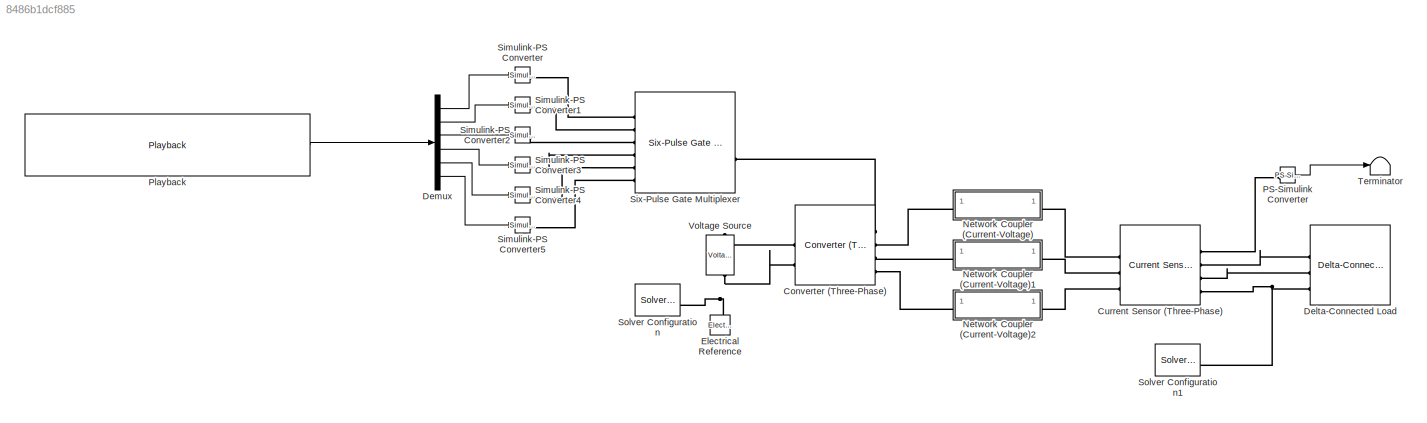
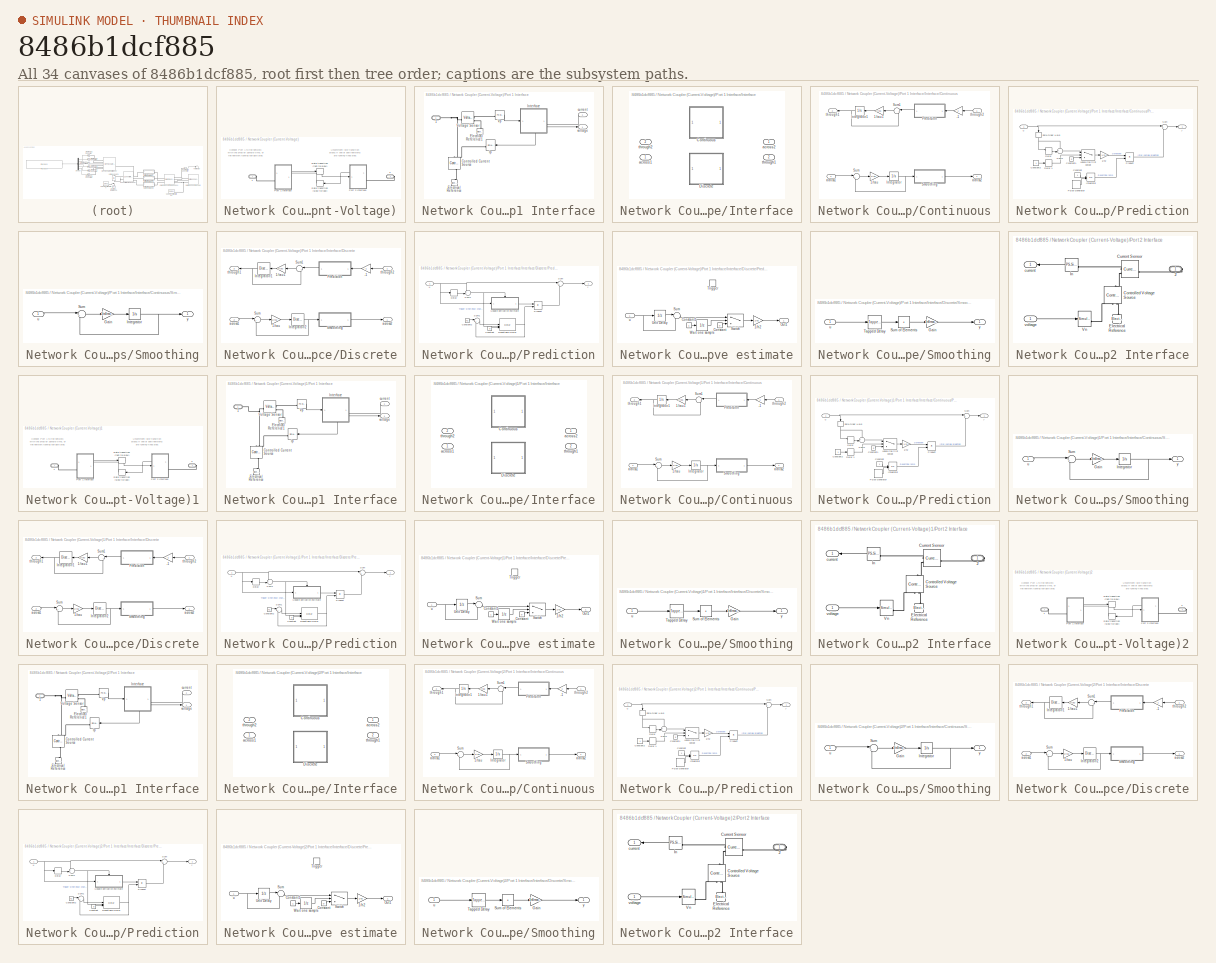
[diagram: thumbnail index - all 34 canvases of the model, root first then tree order]
MODEL slx_8486b1dcf885
KIND model
CONFIG AbsTol = auto
CONFIG EnableMultiTasking = off
CONFIG FixedStep = auto
CONFIG MaxStep = auto
CONFIG MinStep = auto
CONFIG RelTol = 1e-3
CONFIG SampleTimeConstraint = Unconstrained
CONFIG SolverName = FixedStepAuto
CONFIG StartTime = 0.0
CONFIG StopTime = 20
BLOCK [Reference] Converter (Three-Phase)  REF=ee_lib/Semiconductors &
Converters/Converters/Converter
(Three-Phase)
  SourceBlock = ee_lib/Semiconductors &\nConverters/Converters/Converter\n(Three-Phase)
  SourceType = Converter\n(Three-Phase)
BLOCK [Reference] Current Sensor (Three-Phase)  REF=ee_lib/Sensors &
Transducers/Current Sensor
(Three-Phase)
  SourceBlock = ee_lib/Sensors &\nTransducers/Current Sensor\n(Three-Phase)
  SourceType = Current Sensor\n(Three-Phase)
BLOCK [Reference] Delta-Connected Load  REF=ee_lib/Passive/RLC Assemblies/Delta-Connected Load
  SourceBlock = ee_lib/Passive/RLC Assemblies/Delta-Connected Load
  SourceType = Delta-Connected Load
BLOCK [Demux] Demux
  Outputs = 6
BLOCK [Reference] Electrical Reference  REF=fl_lib/Electrical/Electrical Elements/Electrical Reference
  NameLocation = right
  SourceBlock = fl_lib/Electrical/Electrical Elements/Electrical Reference
  SourceType = Electrical Reference
BLOCK [SubSystem] Network Coupler (Current-Voltage)
  OpenFcn = open_system(gcbh,'force')
BLOCK [PMIOPort] Network Coupler (Current-Voltage)/1
  Side = Left
BLOCK [PMIOPort] Network Coupler (Current-Voltage)/2
  Port = 2
  Side = Right
BLOCK [SubSystem] Network Coupler (Current-Voltage)/Port 1 Interface
  PortSchema = {"entries":[{"content":{"sides":[{"content":{"connectorIds":["LConn1"]},"type":"ConnectorPlacement.EquallySpacedRectSide","uuid":"a6d4a9fd-b5aa-40dc-ab7e-2b646b9b57bc"},{"content":{"connectorIds":["Out1","In1"],"side":"RIGHT"},"type":"ConnectorPlacement.EquallySpacedRectSide","uuid":"31bb6273-5b9b-48d0-a1a2-6fbacb979b97"},{"content":{"connectorIds":[],"side":"TOP"},"type":"ConnectorPlacement.Equal...<+249ch>  <repeated x3 — deduplicated; at blocks: Port 1 Interface>
BLOCK [PMIOPort] Network Coupler (Current-Voltage)/Port 1 Interface/1
  Side = Left
BLOCK [Reference] Network Coupler (Current-Voltage)/Port 1 Interface/Controlled Current Source  REF=fl_lib/Electrical/Electrical Sources/Controlled Current
Source
  NameLocation = left
  SourceBlock = fl_lib/Electrical/Electrical Sources/Controlled Current\nSource
  SourceType = Controlled Current\nSource
BLOCK [Reference] Network Coupler (Current-Voltage)/Port 1 Interface/Electrical Reference  REF=fl_lib/Electrical/Electrical Elements/Electrical Reference
  NameLocation = right
  SourceBlock = fl_lib/Electrical/Electrical Elements/Electrical Reference
  SourceType = Electrical Reference
BLOCK [Reference] Network Coupler (Current-Voltage)/Port 1 Interface/Electrical Reference1  REF=fl_lib/Electrical/Electrical Elements/Electrical Reference
  NameLocation = right
  SourceBlock = fl_lib/Electrical/Electrical Elements/Electrical Reference
  SourceType = Electrical Reference
BLOCK [SubSystem] Network Coupler (Current-Voltage)/Port 1 Interface/Interface
  LabelModeActiveChoice = Continuous
  PortSchema = {"entries":[{"content":{"sides":[{"content":{"connectorIds":["In1","Out2"]},"type":"ConnectorPlacement.EquallySpacedRectSide","uuid":"aa56821c-7799-44e3-b228-553c5b43a68d"},{"content":{"connectorIds":["In2","Out1"],"side":"RIGHT"},"type":"ConnectorPlacement.EquallySpacedRectSide","uuid":"8658dee5-55e2-4f33-bdec-e6600ce27fc1"},{"content":{"connectorIds":[],"side":"TOP"},"type":"ConnectorPlacement.E...<+253ch>  <repeated x3 — deduplicated; at blocks: Interface>
  Variant = on
  VariantControl = Variant1
  VariantControlMode = label
BLOCK [SubSystem] Network Coupler (Current-Voltage)/Port 1 Interface/Interface/Continuous
  VariantControl = Continuous
BLOCK [Gain] Network Coupler (Current-Voltage)/Port 1 Interface/Interface/Continuous/-1
  Gain = -1
  OutDataTypeStr = Inherit: Same as input
  ParamDataTypeStr = Inherit: Same as input
  SaturateOnIntegerOverflow = on
BLOCK [Gain] Network Coupler (Current-Voltage)/Port 1 Interface/Interface/Continuous/1//tau
  Gain = 1/tau
  OutDataTypeStr = Inherit: Same as input
  ParamDataTypeStr = Inherit: Same as input
  SaturateOnIntegerOverflow = on
BLOCK [Gain] Network Coupler (Current-Voltage)/Port 1 Interface/Interface/Continuous/1//tau1
  Gain = 1/tau
  OutDataTypeStr = Inherit: Same as input
  ParamDataTypeStr = Inherit: Same as input
  SaturateOnIntegerOverflow = on
BLOCK [Integrator] Network Coupler (Current-Voltage)/Port 1 Interface/Interface/Continuous/Integrator
  InitialCondition = v0
BLOCK [Integrator] Network Coupler (Current-Voltage)/Port 1 Interface/Interface/Continuous/Integrator1
  InitialCondition = i0
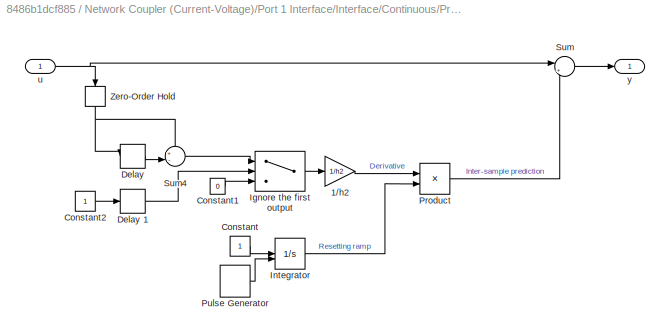
BLOCK [SubSystem] Network Coupler (Current-Voltage)/Port 1 Interface/Interface/Continuous/Prediction
  Commented = through
BLOCK [Gain] Network Coupler (Current-Voltage)/Port 1 Interface/Interface/Continuous/Prediction/1//h2
  Gain = 1/h2
BLOCK [Constant] Network Coupler (Current-Voltage)/Port 1 Interface/Interface/Continuous/Prediction/Constant
  SampleTime = h2
BLOCK [Constant] Network Coupler (Current-Voltage)/Port 1 Interface/Interface/Continuous/Prediction/Constant1
  SampleTime = h2
  Value = 0
BLOCK [Constant] Network Coupler (Current-Voltage)/Port 1 Interface/Interface/Continuous/Prediction/Constant2
  SampleTime = h2
BLOCK [Delay] Network Coupler (Current-Voltage)/Port 1 Interface/Interface/Continuous/Prediction/Delay 
  DelayLength = 1
  InputPortMap = u0
  SampleTime = h2
BLOCK [Delay] Network Coupler (Current-Voltage)/Port 1 Interface/Interface/Continuous/Prediction/Delay 1
  DelayLength = 1
  InputPortMap = u0
  SampleTime = h2
BLOCK [Switch] Network Coupler (Current-Voltage)/Port 1 Interface/Interface/Continuous/Prediction/Ignore the first output
  Criteria = u2 > Threshold
  InputSameDT = off
  SaturateOnIntegerOverflow = off
BLOCK [Integrator] Network Coupler (Current-Voltage)/Port 1 Interface/Interface/Continuous/Prediction/Integrator
  ExternalReset = either
  LimitOutput = on
  LowerSaturationLimit = 0
  UpperSaturationLimit = 1
BLOCK [Product] Network Coupler (Current-Voltage)/Port 1 Interface/Interface/Continuous/Prediction/Product
BLOCK [DiscretePulseGenerator] Network Coupler (Current-Voltage)/Port 1 Interface/Interface/Continuous/Prediction/Pulse Generator
  SampleTime = h2
BLOCK [Sum] Network Coupler (Current-Voltage)/Port 1 Interface/Interface/Continuous/Prediction/Sum
  Inputs = |++
BLOCK [Sum] Network Coupler (Current-Voltage)/Port 1 Interface/Interface/Continuous/Prediction/Sum4
  Inputs = +-|
BLOCK [ZeroOrderHold] Network Coupler (Current-Voltage)/Port 1 Interface/Interface/Continuous/Prediction/Zero-Order Hold
  NameLocation = right
  SampleTime = h2
BLOCK [Inport] Network Coupler (Current-Voltage)/Port 1 Interface/Interface/Continuous/Prediction/u
BLOCK [Outport] Network Coupler (Current-Voltage)/Port 1 Interface/Interface/Continuous/Prediction/y
BLOCK [SubSystem] Network Coupler (Current-Voltage)/Port 1 Interface/Interface/Continuous/Smoothing
  Commented = through
BLOCK [Gain] Network Coupler (Current-Voltage)/Port 1 Interface/Interface/Continuous/Smoothing/Gain
  Gain = 1/tsSmoothing
BLOCK [Integrator] Network Coupler (Current-Voltage)/Port 1 Interface/Interface/Continuous/Smoothing/Integrator
  InitialCondition = smoothing0
BLOCK [Sum] Network Coupler (Current-Voltage)/Port 1 Interface/Interface/Continuous/Smoothing/Sum
  Inputs = |+-
BLOCK [Inport] Network Coupler (Current-Voltage)/Port 1 Interface/Interface/Continuous/Smoothing/u
BLOCK [Outport] Network Coupler (Current-Voltage)/Port 1 Interface/Interface/Continuous/Smoothing/y
BLOCK [Sum] Network Coupler (Current-Voltage)/Port 1 Interface/Interface/Continuous/Sum
  InputSameDT = on
  Inputs = |+-
  OutDataTypeStr = Inherit: Same as first input
  SaturateOnIntegerOverflow = on
BLOCK [Sum] Network Coupler (Current-Voltage)/Port 1 Interface/Interface/Continuous/Sum1
  InputSameDT = on
  Inputs = |+-
  NameLocation = top
  OutDataTypeStr = Inherit: Same as first input
  SaturateOnIntegerOverflow = on
BLOCK [Inport] Network Coupler (Current-Voltage)/Port 1 Interface/Interface/Continuous/across1
  Port = 2
BLOCK [Outport] Network Coupler (Current-Voltage)/Port 1 Interface/Interface/Continuous/across2
BLOCK [Outport] Network Coupler (Current-Voltage)/Port 1 Interface/Interface/Continuous/through1
  Port = 2
BLOCK [Inport] Network Coupler (Current-Voltage)/Port 1 Interface/Interface/Continuous/through2
BLOCK [SubSystem] Network Coupler (Current-Voltage)/Port 1 Interface/Interface/Discrete
  VariantControl = Discrete
BLOCK [Gain] Network Coupler (Current-Voltage)/Port 1 Interface/Interface/Discrete/-1
  Gain = -1
  OutDataTypeStr = Inherit: Same as input
  ParamDataTypeStr = Inherit: Same as input
  SaturateOnIntegerOverflow = on
BLOCK [Gain] Network Coupler (Current-Voltage)/Port 1 Interface/Interface/Discrete/1//tau
  Gain = 1/tau
  OutDataTypeStr = Inherit: Same as input
  ParamDataTypeStr = Inherit: Same as input
  SaturateOnIntegerOverflow = on
BLOCK [Gain] Network Coupler (Current-Voltage)/Port 1 Interface/Interface/Discrete/1//tau1
  Gain = 1/tau
  OutDataTypeStr = Inherit: Same as input
  ParamDataTypeStr = Inherit: Same as input
  SaturateOnIntegerOverflow = on
BLOCK [DiscreteIntegrator] Network Coupler (Current-Voltage)/Port 1 Interface/Interface/Discrete/Integrator//1
  ICPrevOutput = DiscIntNeverNeededParam
  ICPrevScaledInput = DiscIntNeverNeededParam
  InitialCondition = i0
  InitialConditionSetting = Auto
  SampleTime = h1
BLOCK [DiscreteIntegrator] Network Coupler (Current-Voltage)/Port 1 Interface/Interface/Discrete/Integrator//2
  ICPrevOutput = DiscIntNeverNeededParam
  ICPrevScaledInput = DiscIntNeverNeededParam
  InitialCondition = v0
  InitialConditionSetting = Auto
  SampleTime = h1
BLOCK [SubSystem] Network Coupler (Current-Voltage)/Port 1 Interface/Interface/Discrete/Prediction
  Commented = through
BLOCK [Constant] Network Coupler (Current-Voltage)/Port 1 Interface/Interface/Discrete/Prediction/Constant
  SampleTime = h1
  Value = 0
BLOCK [Constant] Network Coupler (Current-Voltage)/Port 1 Interface/Interface/Discrete/Prediction/Constant2
  SampleTime = h1
  Value = h1
BLOCK [Delay] Network Coupler (Current-Voltage)/Port 1 Interface/Interface/Discrete/Prediction/Delay 
  DelayLength = 1
  InputPortMap = u0
  SampleTime = h1
BLOCK [Product] Network Coupler (Current-Voltage)/Port 1 Interface/Interface/Discrete/Prediction/Product
BLOCK [Delay] Network Coupler (Current-Voltage)/Port 1 Interface/Interface/Discrete/Prediction/Resettable Delay
  DelayLength = 1
  ExternalReset = Rising
  InitialConditionSource = Input port
  InputPortMap = u0,r5,p4
  SampleTime = h1
BLOCK [Sum] Network Coupler (Current-Voltage)/Port 1 Interface/Interface/Discrete/Prediction/Sum
  Inputs = |++
BLOCK [Sum] Network Coupler (Current-Voltage)/Port 1 Interface/Interface/Discrete/Prediction/Sum1
  Inputs = |++
BLOCK [Sum] Network Coupler (Current-Voltage)/Port 1 Interface/Interface/Discrete/Prediction/Sum4
  Inputs = +-|
BLOCK [SubSystem] Network Coupler (Current-Voltage)/Port 1 Interface/Interface/Discrete/Prediction/Update derivative estimate
  TreatAsAtomicUnit = on
BLOCK [Gain] Network Coupler (Current-Voltage)/Port 1 Interface/Interface/Discrete/Prediction/Update derivative estimate/1//h2
  Gain = 1/h2
BLOCK [Constant] Network Coupler (Current-Voltage)/Port 1 Interface/Interface/Discrete/Prediction/Update derivative estimate/Constant
  SampleTime = -1
  Value = 0
BLOCK [Constant] Network Coupler (Current-Voltage)/Port 1 Interface/Interface/Discrete/Prediction/Update derivative estimate/Constant1
  SampleTime = -1
BLOCK [Outport] Network Coupler (Current-Voltage)/Port 1 Interface/Interface/Discrete/Prediction/Update derivative estimate/Out1
BLOCK [Sum] Network Coupler (Current-Voltage)/Port 1 Interface/Interface/Discrete/Prediction/Update derivative estimate/Sum
  Inputs = |-+
BLOCK [Switch] Network Coupler (Current-Voltage)/Port 1 Interface/Interface/Discrete/Prediction/Update derivative estimate/Switch
  Criteria = u2 > Threshold
  InputSameDT = off
  SaturateOnIntegerOverflow = off
BLOCK [TriggerPort] Network Coupler (Current-Voltage)/Port 1 Interface/Interface/Discrete/Prediction/Update derivative estimate/Trigger
  StatesWhenEnabling = held
  VariantControl = (inherit)
BLOCK [UnitDelay] Network Coupler (Current-Voltage)/Port 1 Interface/Interface/Discrete/Prediction/Update derivative estimate/Unit Delay
  HasFrameUpgradeWarning = on
  SampleTime = -1
BLOCK [UnitDelay] Network Coupler (Current-Voltage)/Port 1 Interface/Interface/Discrete/Prediction/Update derivative estimate/Wait one sample
  HasFrameUpgradeWarning = on
  SampleTime = -1
BLOCK [Inport] Network Coupler (Current-Voltage)/Port 1 Interface/Interface/Discrete/Prediction/Update derivative estimate/u
BLOCK [Inport] Network Coupler (Current-Voltage)/Port 1 Interface/Interface/Discrete/Prediction/u
BLOCK [Outport] Network Coupler (Current-Voltage)/Port 1 Interface/Interface/Discrete/Prediction/y
BLOCK [SubSystem] Network Coupler (Current-Voltage)/Port 1 Interface/Interface/Discrete/Smoothing
  Commented = through
BLOCK [Gain] Network Coupler (Current-Voltage)/Port 1 Interface/Interface/Discrete/Smoothing/Gain
  Gain = 1/nSmooth
BLOCK [Sum] Network Coupler (Current-Voltage)/Port 1 Interface/Interface/Discrete/Smoothing/Sum of Elements
  IconShape = rectangular
  Inputs = +
BLOCK [Reference] Network Coupler (Current-Voltage)/Port 1 Interface/Interface/Discrete/Smoothing/Tapped Delay  REF=simulink/Discrete/Tapped Delay
  SourceBlock = simulink/Discrete/Tapped Delay
  SourceType = Tapped Delay Line
BLOCK [Inport] Network Coupler (Current-Voltage)/Port 1 Interface/Interface/Discrete/Smoothing/u
BLOCK [Outport] Network Coupler (Current-Voltage)/Port 1 Interface/Interface/Discrete/Smoothing/y
BLOCK [Sum] Network Coupler (Current-Voltage)/Port 1 Interface/Interface/Discrete/Sum
  InputSameDT = on
  Inputs = |+-
  OutDataTypeStr = Inherit: Same as first input
  SaturateOnIntegerOverflow = on
BLOCK [Sum] Network Coupler (Current-Voltage)/Port 1 Interface/Interface/Discrete/Sum1
  InputSameDT = on
  Inputs = |+-
  NameLocation = top
  OutDataTypeStr = Inherit: Same as first input
  SaturateOnIntegerOverflow = on
BLOCK [Inport] Network Coupler (Current-Voltage)/Port 1 Interface/Interface/Discrete/across1
  Port = 2
BLOCK [Outport] Network Coupler (Current-Voltage)/Port 1 Interface/Interface/Discrete/across2
BLOCK [Outport] Network Coupler (Current-Voltage)/Port 1 Interface/Interface/Discrete/through1
  Port = 2
BLOCK [Inport] Network Coupler (Current-Voltage)/Port 1 Interface/Interface/Discrete/through2
BLOCK [Inport] Network Coupler (Current-Voltage)/Port 1 Interface/Interface/across1
BLOCK [Outport] Network Coupler (Current-Voltage)/Port 1 Interface/Interface/across2
BLOCK [Outport] Network Coupler (Current-Voltage)/Port 1 Interface/Interface/through1
  Port = 2
BLOCK [Inport] Network Coupler (Current-Voltage)/Port 1 Interface/Interface/through2
  Port = 2
BLOCK [Reference] Network Coupler (Current-Voltage)/Port 1 Interface/Ip  REF=nesl_utility/Simulink-PS
Converter
  SourceBlock = nesl_utility/Simulink-PS\nConverter
  SourceType = Simulink-PS\nConverter
BLOCK [Reference] Network Coupler (Current-Voltage)/Port 1 Interface/Voltage Sensor  REF=fl_lib/Electrical/Electrical Sensors/Voltage Sensor
  SourceBlock = fl_lib/Electrical/Electrical Sensors/Voltage Sensor
  SourceType = Voltage Sensor
BLOCK [Reference] Network Coupler (Current-Voltage)/Port 1 Interface/Vp  REF=nesl_utility/PS-Simulink
Converter
  SourceBlock = nesl_utility/PS-Simulink\nConverter
  SourceType = PS-Simulink\nConverter
BLOCK [Inport] Network Coupler (Current-Voltage)/Port 1 Interface/current
BLOCK [Outport] Network Coupler (Current-Voltage)/Port 1 Interface/voltage
BLOCK [SubSystem] Network Coupler (Current-Voltage)/Port 2 Interface
  PortSchema = {"entries":[{"content":{"sides":[{"content":{"connectorIds":["In1","Out1"]},"type":"ConnectorPlacement.EquallySpacedRectSide","uuid":"5a4c1550-e77d-42df-bf3e-b81963920de7"},{"content":{"connectorIds":["RConn1"],"side":"RIGHT"},"type":"ConnectorPlacement.EquallySpacedRectSide","uuid":"3fd730f7-5937-4563-a365-595aaae9027b"},{"content":{"connectorIds":[],"side":"TOP"},"type":"ConnectorPlacement.Equal...<+249ch>  <repeated x3 — deduplicated; at blocks: Port 2 Interface>
BLOCK [PMIOPort] Network Coupler (Current-Voltage)/Port 2 Interface/2
  Side = Right
BLOCK [Reference] Network Coupler (Current-Voltage)/Port 2 Interface/Controlled Voltage Source  REF=fl_lib/Electrical/Electrical Sources/Controlled Voltage
Source
  NameLocation = right
  SourceBlock = fl_lib/Electrical/Electrical Sources/Controlled Voltage\nSource
  SourceType = Controlled Voltage\nSource
BLOCK [Reference] Network Coupler (Current-Voltage)/Port 2 Interface/Current Sensor  REF=fl_lib/Electrical/Electrical Sensors/Current Sensor
  SourceBlock = fl_lib/Electrical/Electrical Sensors/Current Sensor
  SourceType = Current Sensor
BLOCK [Reference] Network Coupler (Current-Voltage)/Port 2 Interface/Electrical Reference  REF=fl_lib/Electrical/Electrical Elements/Electrical Reference
  NameLocation = left
  SourceBlock = fl_lib/Electrical/Electrical Elements/Electrical Reference
  SourceType = Electrical Reference
BLOCK [Reference] Network Coupler (Current-Voltage)/Port 2 Interface/In  REF=nesl_utility/PS-Simulink
Converter
  NameLocation = top
  SourceBlock = nesl_utility/PS-Simulink\nConverter
  SourceType = PS-Simulink\nConverter
BLOCK [Reference] Network Coupler (Current-Voltage)/Port 2 Interface/Vn  REF=nesl_utility/Simulink-PS
Converter
  NameLocation = top
  SourceBlock = nesl_utility/Simulink-PS\nConverter
  SourceType = Simulink-PS\nConverter
BLOCK [Outport] Network Coupler (Current-Voltage)/Port 2 Interface/current
BLOCK [Inport] Network Coupler (Current-Voltage)/Port 2 Interface/voltage
BLOCK [RateTransition] Network Coupler (Current-Voltage)/Rate transition (fast-to-slow)
  Commented = through
  Integrity = off
  NameLocation = top
BLOCK [RateTransition] Network Coupler (Current-Voltage)/Rate transition (slow-to-fast)
  Commented = through
  Integrity = off
BLOCK [SubSystem] Network Coupler (Current-Voltage)1
  OpenFcn = open_system(gcbh,'force')
BLOCK [PMIOPort] Network Coupler (Current-Voltage)1/1
  Side = Left
BLOCK [PMIOPort] Network Coupler (Current-Voltage)1/2
  Port = 2
  Side = Right
BLOCK [SubSystem] Network Coupler (Current-Voltage)1/Port 1 Interface
BLOCK [PMIOPort] Network Coupler (Current-Voltage)1/Port 1 Interface/1
  Side = Left
BLOCK [Reference] Network Coupler (Current-Voltage)1/Port 1 Interface/Controlled Current Source  REF=fl_lib/Electrical/Electrical Sources/Controlled Current
Source
  NameLocation = left
  SourceBlock = fl_lib/Electrical/Electrical Sources/Controlled Current\nSource
  SourceType = Controlled Current\nSource
BLOCK [Reference] Network Coupler (Current-Voltage)1/Port 1 Interface/Electrical Reference  REF=fl_lib/Electrical/Electrical Elements/Electrical Reference
  NameLocation = right
  SourceBlock = fl_lib/Electrical/Electrical Elements/Electrical Reference
  SourceType = Electrical Reference
BLOCK [Reference] Network Coupler (Current-Voltage)1/Port 1 Interface/Electrical Reference1  REF=fl_lib/Electrical/Electrical Elements/Electrical Reference
  NameLocation = right
  SourceBlock = fl_lib/Electrical/Electrical Elements/Electrical Reference
  SourceType = Electrical Reference
BLOCK [SubSystem] Network Coupler (Current-Voltage)1/Port 1 Interface/Interface
  LabelModeActiveChoice = Continuous
  Variant = on
  VariantControl = Variant1
  VariantControlMode = label
BLOCK [SubSystem] Network Coupler (Current-Voltage)1/Port 1 Interface/Interface/Continuous
  VariantControl = Continuous
BLOCK [Gain] Network Coupler (Current-Voltage)1/Port 1 Interface/Interface/Continuous/-1
  Gain = -1
  OutDataTypeStr = Inherit: Same as input
  ParamDataTypeStr = Inherit: Same as input
  SaturateOnIntegerOverflow = on
BLOCK [Gain] Network Coupler (Current-Voltage)1/Port 1 Interface/Interface/Continuous/1//tau
  Gain = 1/tau
  OutDataTypeStr = Inherit: Same as input
  ParamDataTypeStr = Inherit: Same as input
  SaturateOnIntegerOverflow = on
BLOCK [Gain] Network Coupler (Current-Voltage)1/Port 1 Interface/Interface/Continuous/1//tau1
  Gain = 1/tau
  OutDataTypeStr = Inherit: Same as input
  ParamDataTypeStr = Inherit: Same as input
  SaturateOnIntegerOverflow = on
BLOCK [Integrator] Network Coupler (Current-Voltage)1/Port 1 Interface/Interface/Continuous/Integrator
  InitialCondition = v0
BLOCK [Integrator] Network Coupler (Current-Voltage)1/Port 1 Interface/Interface/Continuous/Integrator1
  InitialCondition = i0
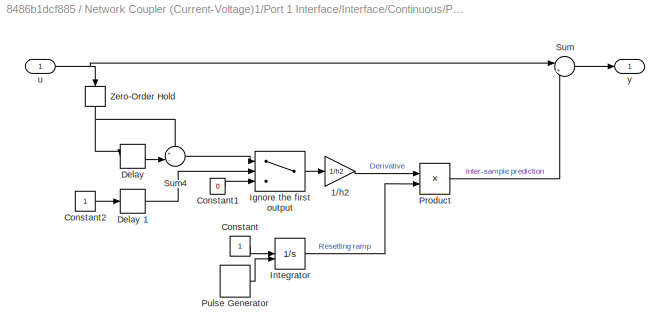
BLOCK [SubSystem] Network Coupler (Current-Voltage)1/Port 1 Interface/Interface/Continuous/Prediction
  Commented = through
BLOCK [Gain] Network Coupler (Current-Voltage)1/Port 1 Interface/Interface/Continuous/Prediction/1//h2
  Gain = 1/h2
BLOCK [Constant] Network Coupler (Current-Voltage)1/Port 1 Interface/Interface/Continuous/Prediction/Constant
  SampleTime = h2
BLOCK [Constant] Network Coupler (Current-Voltage)1/Port 1 Interface/Interface/Continuous/Prediction/Constant1
  SampleTime = h2
  Value = 0
BLOCK [Constant] Network Coupler (Current-Voltage)1/Port 1 Interface/Interface/Continuous/Prediction/Constant2
  SampleTime = h2
BLOCK [Delay] Network Coupler (Current-Voltage)1/Port 1 Interface/Interface/Continuous/Prediction/Delay 
  DelayLength = 1
  InputPortMap = u0
  SampleTime = h2
BLOCK [Delay] Network Coupler (Current-Voltage)1/Port 1 Interface/Interface/Continuous/Prediction/Delay 1
  DelayLength = 1
  InputPortMap = u0
  SampleTime = h2
BLOCK [Switch] Network Coupler (Current-Voltage)1/Port 1 Interface/Interface/Continuous/Prediction/Ignore the first output
  Criteria = u2 > Threshold
  InputSameDT = off
  SaturateOnIntegerOverflow = off
BLOCK [Integrator] Network Coupler (Current-Voltage)1/Port 1 Interface/Interface/Continuous/Prediction/Integrator
  ExternalReset = either
  LimitOutput = on
  LowerSaturationLimit = 0
  UpperSaturationLimit = 1
BLOCK [Product] Network Coupler (Current-Voltage)1/Port 1 Interface/Interface/Continuous/Prediction/Product
BLOCK [DiscretePulseGenerator] Network Coupler (Current-Voltage)1/Port 1 Interface/Interface/Continuous/Prediction/Pulse Generator
  SampleTime = h2
BLOCK [Sum] Network Coupler (Current-Voltage)1/Port 1 Interface/Interface/Continuous/Prediction/Sum
  Inputs = |++
BLOCK [Sum] Network Coupler (Current-Voltage)1/Port 1 Interface/Interface/Continuous/Prediction/Sum4
  Inputs = +-|
BLOCK [ZeroOrderHold] Network Coupler (Current-Voltage)1/Port 1 Interface/Interface/Continuous/Prediction/Zero-Order Hold
  NameLocation = right
  SampleTime = h2
BLOCK [Inport] Network Coupler (Current-Voltage)1/Port 1 Interface/Interface/Continuous/Prediction/u
BLOCK [Outport] Network Coupler (Current-Voltage)1/Port 1 Interface/Interface/Continuous/Prediction/y
BLOCK [SubSystem] Network Coupler (Current-Voltage)1/Port 1 Interface/Interface/Continuous/Smoothing
  Commented = through
BLOCK [Gain] Network Coupler (Current-Voltage)1/Port 1 Interface/Interface/Continuous/Smoothing/Gain
  Gain = 1/tsSmoothing
BLOCK [Integrator] Network Coupler (Current-Voltage)1/Port 1 Interface/Interface/Continuous/Smoothing/Integrator
  InitialCondition = smoothing0
BLOCK [Sum] Network Coupler (Current-Voltage)1/Port 1 Interface/Interface/Continuous/Smoothing/Sum
  Inputs = |+-
BLOCK [Inport] Network Coupler (Current-Voltage)1/Port 1 Interface/Interface/Continuous/Smoothing/u
BLOCK [Outport] Network Coupler (Current-Voltage)1/Port 1 Interface/Interface/Continuous/Smoothing/y
BLOCK [Sum] Network Coupler (Current-Voltage)1/Port 1 Interface/Interface/Continuous/Sum
  InputSameDT = on
  Inputs = |+-
  OutDataTypeStr = Inherit: Same as first input
  SaturateOnIntegerOverflow = on
BLOCK [Sum] Network Coupler (Current-Voltage)1/Port 1 Interface/Interface/Continuous/Sum1
  InputSameDT = on
  Inputs = |+-
  NameLocation = top
  OutDataTypeStr = Inherit: Same as first input
  SaturateOnIntegerOverflow = on
BLOCK [Inport] Network Coupler (Current-Voltage)1/Port 1 Interface/Interface/Continuous/across1
  Port = 2
BLOCK [Outport] Network Coupler (Current-Voltage)1/Port 1 Interface/Interface/Continuous/across2
BLOCK [Outport] Network Coupler (Current-Voltage)1/Port 1 Interface/Interface/Continuous/through1
  Port = 2
BLOCK [Inport] Network Coupler (Current-Voltage)1/Port 1 Interface/Interface/Continuous/through2
BLOCK [SubSystem] Network Coupler (Current-Voltage)1/Port 1 Interface/Interface/Discrete
  VariantControl = Discrete
BLOCK [Gain] Network Coupler (Current-Voltage)1/Port 1 Interface/Interface/Discrete/-1
  Gain = -1
  OutDataTypeStr = Inherit: Same as input
  ParamDataTypeStr = Inherit: Same as input
  SaturateOnIntegerOverflow = on
BLOCK [Gain] Network Coupler (Current-Voltage)1/Port 1 Interface/Interface/Discrete/1//tau
  Gain = 1/tau
  OutDataTypeStr = Inherit: Same as input
  ParamDataTypeStr = Inherit: Same as input
  SaturateOnIntegerOverflow = on
BLOCK [Gain] Network Coupler (Current-Voltage)1/Port 1 Interface/Interface/Discrete/1//tau1
  Gain = 1/tau
  OutDataTypeStr = Inherit: Same as input
  ParamDataTypeStr = Inherit: Same as input
  SaturateOnIntegerOverflow = on
BLOCK [DiscreteIntegrator] Network Coupler (Current-Voltage)1/Port 1 Interface/Interface/Discrete/Integrator//1
  ICPrevOutput = DiscIntNeverNeededParam
  ICPrevScaledInput = DiscIntNeverNeededParam
  InitialCondition = i0
  InitialConditionSetting = Auto
  SampleTime = h1
BLOCK [DiscreteIntegrator] Network Coupler (Current-Voltage)1/Port 1 Interface/Interface/Discrete/Integrator//2
  ICPrevOutput = DiscIntNeverNeededParam
  ICPrevScaledInput = DiscIntNeverNeededParam
  InitialCondition = v0
  InitialConditionSetting = Auto
  SampleTime = h1
BLOCK [SubSystem] Network Coupler (Current-Voltage)1/Port 1 Interface/Interface/Discrete/Prediction
  Commented = through
BLOCK [Constant] Network Coupler (Current-Voltage)1/Port 1 Interface/Interface/Discrete/Prediction/Constant
  SampleTime = h1
  Value = 0
BLOCK [Constant] Network Coupler (Current-Voltage)1/Port 1 Interface/Interface/Discrete/Prediction/Constant2
  SampleTime = h1
  Value = h1
BLOCK [Delay] Network Coupler (Current-Voltage)1/Port 1 Interface/Interface/Discrete/Prediction/Delay 
  DelayLength = 1
  InputPortMap = u0
  SampleTime = h1
BLOCK [Product] Network Coupler (Current-Voltage)1/Port 1 Interface/Interface/Discrete/Prediction/Product
BLOCK [Delay] Network Coupler (Current-Voltage)1/Port 1 Interface/Interface/Discrete/Prediction/Resettable Delay
  DelayLength = 1
  ExternalReset = Rising
  InitialConditionSource = Input port
  InputPortMap = u0,r5,p4
  SampleTime = h1
BLOCK [Sum] Network Coupler (Current-Voltage)1/Port 1 Interface/Interface/Discrete/Prediction/Sum
  Inputs = |++
BLOCK [Sum] Network Coupler (Current-Voltage)1/Port 1 Interface/Interface/Discrete/Prediction/Sum1
  Inputs = |++
BLOCK [Sum] Network Coupler (Current-Voltage)1/Port 1 Interface/Interface/Discrete/Prediction/Sum4
  Inputs = +-|
BLOCK [SubSystem] Network Coupler (Current-Voltage)1/Port 1 Interface/Interface/Discrete/Prediction/Update derivative estimate
  TreatAsAtomicUnit = on
BLOCK [Gain] Network Coupler (Current-Voltage)1/Port 1 Interface/Interface/Discrete/Prediction/Update derivative estimate/1//h2
  Gain = 1/h2
BLOCK [Constant] Network Coupler (Current-Voltage)1/Port 1 Interface/Interface/Discrete/Prediction/Update derivative estimate/Constant
  SampleTime = -1
  Value = 0
BLOCK [Constant] Network Coupler (Current-Voltage)1/Port 1 Interface/Interface/Discrete/Prediction/Update derivative estimate/Constant1
  SampleTime = -1
BLOCK [Outport] Network Coupler (Current-Voltage)1/Port 1 Interface/Interface/Discrete/Prediction/Update derivative estimate/Out1
BLOCK [Sum] Network Coupler (Current-Voltage)1/Port 1 Interface/Interface/Discrete/Prediction/Update derivative estimate/Sum
  Inputs = |-+
BLOCK [Switch] Network Coupler (Current-Voltage)1/Port 1 Interface/Interface/Discrete/Prediction/Update derivative estimate/Switch
  Criteria = u2 > Threshold
  InputSameDT = off
  SaturateOnIntegerOverflow = off
BLOCK [TriggerPort] Network Coupler (Current-Voltage)1/Port 1 Interface/Interface/Discrete/Prediction/Update derivative estimate/Trigger
  StatesWhenEnabling = held
  VariantControl = (inherit)
BLOCK [UnitDelay] Network Coupler (Current-Voltage)1/Port 1 Interface/Interface/Discrete/Prediction/Update derivative estimate/Unit Delay
  HasFrameUpgradeWarning = on
  SampleTime = -1
BLOCK [UnitDelay] Network Coupler (Current-Voltage)1/Port 1 Interface/Interface/Discrete/Prediction/Update derivative estimate/Wait one sample
  HasFrameUpgradeWarning = on
  SampleTime = -1
BLOCK [Inport] Network Coupler (Current-Voltage)1/Port 1 Interface/Interface/Discrete/Prediction/Update derivative estimate/u
BLOCK [Inport] Network Coupler (Current-Voltage)1/Port 1 Interface/Interface/Discrete/Prediction/u
BLOCK [Outport] Network Coupler (Current-Voltage)1/Port 1 Interface/Interface/Discrete/Prediction/y
BLOCK [SubSystem] Network Coupler (Current-Voltage)1/Port 1 Interface/Interface/Discrete/Smoothing
  Commented = through
BLOCK [Gain] Network Coupler (Current-Voltage)1/Port 1 Interface/Interface/Discrete/Smoothing/Gain
  Gain = 1/nSmooth
BLOCK [Sum] Network Coupler (Current-Voltage)1/Port 1 Interface/Interface/Discrete/Smoothing/Sum of Elements
  IconShape = rectangular
  Inputs = +
BLOCK [Reference] Network Coupler (Current-Voltage)1/Port 1 Interface/Interface/Discrete/Smoothing/Tapped Delay  REF=simulink/Discrete/Tapped Delay
  SourceBlock = simulink/Discrete/Tapped Delay
  SourceType = Tapped Delay Line
BLOCK [Inport] Network Coupler (Current-Voltage)1/Port 1 Interface/Interface/Discrete/Smoothing/u
BLOCK [Outport] Network Coupler (Current-Voltage)1/Port 1 Interface/Interface/Discrete/Smoothing/y
BLOCK [Sum] Network Coupler (Current-Voltage)1/Port 1 Interface/Interface/Discrete/Sum
  InputSameDT = on
  Inputs = |+-
  OutDataTypeStr = Inherit: Same as first input
  SaturateOnIntegerOverflow = on
BLOCK [Sum] Network Coupler (Current-Voltage)1/Port 1 Interface/Interface/Discrete/Sum1
  InputSameDT = on
  Inputs = |+-
  NameLocation = top
  OutDataTypeStr = Inherit: Same as first input
  SaturateOnIntegerOverflow = on
BLOCK [Inport] Network Coupler (Current-Voltage)1/Port 1 Interface/Interface/Discrete/across1
  Port = 2
BLOCK [Outport] Network Coupler (Current-Voltage)1/Port 1 Interface/Interface/Discrete/across2
BLOCK [Outport] Network Coupler (Current-Voltage)1/Port 1 Interface/Interface/Discrete/through1
  Port = 2
BLOCK [Inport] Network Coupler (Current-Voltage)1/Port 1 Interface/Interface/Discrete/through2
BLOCK [Inport] Network Coupler (Current-Voltage)1/Port 1 Interface/Interface/across1
BLOCK [Outport] Network Coupler (Current-Voltage)1/Port 1 Interface/Interface/across2
BLOCK [Outport] Network Coupler (Current-Voltage)1/Port 1 Interface/Interface/through1
  Port = 2
BLOCK [Inport] Network Coupler (Current-Voltage)1/Port 1 Interface/Interface/through2
  Port = 2
BLOCK [Reference] Network Coupler (Current-Voltage)1/Port 1 Interface/Ip  REF=nesl_utility/Simulink-PS
Converter
  SourceBlock = nesl_utility/Simulink-PS\nConverter
  SourceType = Simulink-PS\nConverter
BLOCK [Reference] Network Coupler (Current-Voltage)1/Port 1 Interface/Voltage Sensor  REF=fl_lib/Electrical/Electrical Sensors/Voltage Sensor
  SourceBlock = fl_lib/Electrical/Electrical Sensors/Voltage Sensor
  SourceType = Voltage Sensor
BLOCK [Reference] Network Coupler (Current-Voltage)1/Port 1 Interface/Vp  REF=nesl_utility/PS-Simulink
Converter
  SourceBlock = nesl_utility/PS-Simulink\nConverter
  SourceType = PS-Simulink\nConverter
BLOCK [Inport] Network Coupler (Current-Voltage)1/Port 1 Interface/current
BLOCK [Outport] Network Coupler (Current-Voltage)1/Port 1 Interface/voltage
BLOCK [SubSystem] Network Coupler (Current-Voltage)1/Port 2 Interface
BLOCK [PMIOPort] Network Coupler (Current-Voltage)1/Port 2 Interface/2
  Side = Right
BLOCK [Reference] Network Coupler (Current-Voltage)1/Port 2 Interface/Controlled Voltage Source  REF=fl_lib/Electrical/Electrical Sources/Controlled Voltage
Source
  NameLocation = right
  SourceBlock = fl_lib/Electrical/Electrical Sources/Controlled Voltage\nSource
  SourceType = Controlled Voltage\nSource
BLOCK [Reference] Network Coupler (Current-Voltage)1/Port 2 Interface/Current Sensor  REF=fl_lib/Electrical/Electrical Sensors/Current Sensor
  SourceBlock = fl_lib/Electrical/Electrical Sensors/Current Sensor
  SourceType = Current Sensor
BLOCK [Reference] Network Coupler (Current-Voltage)1/Port 2 Interface/Electrical Reference  REF=fl_lib/Electrical/Electrical Elements/Electrical Reference
  NameLocation = left
  SourceBlock = fl_lib/Electrical/Electrical Elements/Electrical Reference
  SourceType = Electrical Reference
BLOCK [Reference] Network Coupler (Current-Voltage)1/Port 2 Interface/In  REF=nesl_utility/PS-Simulink
Converter
  NameLocation = top
  SourceBlock = nesl_utility/PS-Simulink\nConverter
  SourceType = PS-Simulink\nConverter
BLOCK [Reference] Network Coupler (Current-Voltage)1/Port 2 Interface/Vn  REF=nesl_utility/Simulink-PS
Converter
  NameLocation = top
  SourceBlock = nesl_utility/Simulink-PS\nConverter
  SourceType = Simulink-PS\nConverter
BLOCK [Outport] Network Coupler (Current-Voltage)1/Port 2 Interface/current
BLOCK [Inport] Network Coupler (Current-Voltage)1/Port 2 Interface/voltage
BLOCK [RateTransition] Network Coupler (Current-Voltage)1/Rate transition (fast-to-slow)
  Commented = through
  Integrity = off
  NameLocation = top
BLOCK [RateTransition] Network Coupler (Current-Voltage)1/Rate transition (slow-to-fast)
  Commented = through
  Integrity = off
BLOCK [SubSystem] Network Coupler (Current-Voltage)2
  OpenFcn = open_system(gcbh,'force')
BLOCK [PMIOPort] Network Coupler (Current-Voltage)2/1
  Side = Left
BLOCK [PMIOPort] Network Coupler (Current-Voltage)2/2
  Port = 2
  Side = Right
BLOCK [SubSystem] Network Coupler (Current-Voltage)2/Port 1 Interface
BLOCK [PMIOPort] Network Coupler (Current-Voltage)2/Port 1 Interface/1
  Side = Left
BLOCK [Reference] Network Coupler (Current-Voltage)2/Port 1 Interface/Controlled Current Source  REF=fl_lib/Electrical/Electrical Sources/Controlled Current
Source
  NameLocation = left
  SourceBlock = fl_lib/Electrical/Electrical Sources/Controlled Current\nSource
  SourceType = Controlled Current\nSource
BLOCK [Reference] Network Coupler (Current-Voltage)2/Port 1 Interface/Electrical Reference  REF=fl_lib/Electrical/Electrical Elements/Electrical Reference
  NameLocation = right
  SourceBlock = fl_lib/Electrical/Electrical Elements/Electrical Reference
  SourceType = Electrical Reference
BLOCK [Reference] Network Coupler (Current-Voltage)2/Port 1 Interface/Electrical Reference1  REF=fl_lib/Electrical/Electrical Elements/Electrical Reference
  NameLocation = right
  SourceBlock = fl_lib/Electrical/Electrical Elements/Electrical Reference
  SourceType = Electrical Reference
BLOCK [SubSystem] Network Coupler (Current-Voltage)2/Port 1 Interface/Interface
  LabelModeActiveChoice = Continuous
  Variant = on
  VariantControl = Variant1
  VariantControlMode = label
BLOCK [SubSystem] Network Coupler (Current-Voltage)2/Port 1 Interface/Interface/Continuous
  VariantControl = Continuous
BLOCK [Gain] Network Coupler (Current-Voltage)2/Port 1 Interface/Interface/Continuous/-1
  Gain = -1
  OutDataTypeStr = Inherit: Same as input
  ParamDataTypeStr = Inherit: Same as input
  SaturateOnIntegerOverflow = on
BLOCK [Gain] Network Coupler (Current-Voltage)2/Port 1 Interface/Interface/Continuous/1//tau
  Gain = 1/tau
  OutDataTypeStr = Inherit: Same as input
  ParamDataTypeStr = Inherit: Same as input
  SaturateOnIntegerOverflow = on
BLOCK [Gain] Network Coupler (Current-Voltage)2/Port 1 Interface/Interface/Continuous/1//tau1
  Gain = 1/tau
  OutDataTypeStr = Inherit: Same as input
  ParamDataTypeStr = Inherit: Same as input
  SaturateOnIntegerOverflow = on
BLOCK [Integrator] Network Coupler (Current-Voltage)2/Port 1 Interface/Interface/Continuous/Integrator
  InitialCondition = v0
BLOCK [Integrator] Network Coupler (Current-Voltage)2/Port 1 Interface/Interface/Continuous/Integrator1
  InitialCondition = i0
BLOCK [SubSystem] Network Coupler (Current-Voltage)2/Port 1 Interface/Interface/Continuous/Prediction
  Commented = through
BLOCK [Gain] Network Coupler (Current-Voltage)2/Port 1 Interface/Interface/Continuous/Prediction/1//h2
  Gain = 1/h2
BLOCK [Constant] Network Coupler (Current-Voltage)2/Port 1 Interface/Interface/Continuous/Prediction/Constant
  SampleTime = h2
BLOCK [Constant] Network Coupler (Current-Voltage)2/Port 1 Interface/Interface/Continuous/Prediction/Constant1
  SampleTime = h2
  Value = 0
BLOCK [Constant] Network Coupler (Current-Voltage)2/Port 1 Interface/Interface/Continuous/Prediction/Constant2
  SampleTime = h2
BLOCK [Delay] Network Coupler (Current-Voltage)2/Port 1 Interface/Interface/Continuous/Prediction/Delay 
  DelayLength = 1
  InputPortMap = u0
  SampleTime = h2
BLOCK [Delay] Network Coupler (Current-Voltage)2/Port 1 Interface/Interface/Continuous/Prediction/Delay 1
  DelayLength = 1
  InputPortMap = u0
  SampleTime = h2
BLOCK [Switch] Network Coupler (Current-Voltage)2/Port 1 Interface/Interface/Continuous/Prediction/Ignore the first output
  Criteria = u2 > Threshold
  InputSameDT = off
  SaturateOnIntegerOverflow = off
BLOCK [Integrator] Network Coupler (Current-Voltage)2/Port 1 Interface/Interface/Continuous/Prediction/Integrator
  ExternalReset = either
  LimitOutput = on
  LowerSaturationLimit = 0
  UpperSaturationLimit = 1
BLOCK [Product] Network Coupler (Current-Voltage)2/Port 1 Interface/Interface/Continuous/Prediction/Product
BLOCK [DiscretePulseGenerator] Network Coupler (Current-Voltage)2/Port 1 Interface/Interface/Continuous/Prediction/Pulse Generator
  SampleTime = h2
BLOCK [Sum] Network Coupler (Current-Voltage)2/Port 1 Interface/Interface/Continuous/Prediction/Sum
  Inputs = |++
BLOCK [Sum] Network Coupler (Current-Voltage)2/Port 1 Interface/Interface/Continuous/Prediction/Sum4
  Inputs = +-|
BLOCK [ZeroOrderHold] Network Coupler (Current-Voltage)2/Port 1 Interface/Interface/Continuous/Prediction/Zero-Order Hold
  NameLocation = right
  SampleTime = h2
BLOCK [Inport] Network Coupler (Current-Voltage)2/Port 1 Interface/Interface/Continuous/Prediction/u
BLOCK [Outport] Network Coupler (Current-Voltage)2/Port 1 Interface/Interface/Continuous/Prediction/y
BLOCK [SubSystem] Network Coupler (Current-Voltage)2/Port 1 Interface/Interface/Continuous/Smoothing
  Commented = through
BLOCK [Gain] Network Coupler (Current-Voltage)2/Port 1 Interface/Interface/Continuous/Smoothing/Gain
  Gain = 1/tsSmoothing
BLOCK [Integrator] Network Coupler (Current-Voltage)2/Port 1 Interface/Interface/Continuous/Smoothing/Integrator
  InitialCondition = smoothing0
BLOCK [Sum] Network Coupler (Current-Voltage)2/Port 1 Interface/Interface/Continuous/Smoothing/Sum
  Inputs = |+-
BLOCK [Inport] Network Coupler (Current-Voltage)2/Port 1 Interface/Interface/Continuous/Smoothing/u
BLOCK [Outport] Network Coupler (Current-Voltage)2/Port 1 Interface/Interface/Continuous/Smoothing/y
BLOCK [Sum] Network Coupler (Current-Voltage)2/Port 1 Interface/Interface/Continuous/Sum
  InputSameDT = on
  Inputs = |+-
  OutDataTypeStr = Inherit: Same as first input
  SaturateOnIntegerOverflow = on
BLOCK [Sum] Network Coupler (Current-Voltage)2/Port 1 Interface/Interface/Continuous/Sum1
  InputSameDT = on
  Inputs = |+-
  NameLocation = top
  OutDataTypeStr = Inherit: Same as first input
  SaturateOnIntegerOverflow = on
BLOCK [Inport] Network Coupler (Current-Voltage)2/Port 1 Interface/Interface/Continuous/across1
  Port = 2
BLOCK [Outport] Network Coupler (Current-Voltage)2/Port 1 Interface/Interface/Continuous/across2
BLOCK [Outport] Network Coupler (Current-Voltage)2/Port 1 Interface/Interface/Continuous/through1
  Port = 2
BLOCK [Inport] Network Coupler (Current-Voltage)2/Port 1 Interface/Interface/Continuous/through2
BLOCK [SubSystem] Network Coupler (Current-Voltage)2/Port 1 Interface/Interface/Discrete
  VariantControl = Discrete
BLOCK [Gain] Network Coupler (Current-Voltage)2/Port 1 Interface/Interface/Discrete/-1
  Gain = -1
  OutDataTypeStr = Inherit: Same as input
  ParamDataTypeStr = Inherit: Same as input
  SaturateOnIntegerOverflow = on
BLOCK [Gain] Network Coupler (Current-Voltage)2/Port 1 Interface/Interface/Discrete/1//tau
  Gain = 1/tau
  OutDataTypeStr = Inherit: Same as input
  ParamDataTypeStr = Inherit: Same as input
  SaturateOnIntegerOverflow = on
BLOCK [Gain] Network Coupler (Current-Voltage)2/Port 1 Interface/Interface/Discrete/1//tau1
  Gain = 1/tau
  OutDataTypeStr = Inherit: Same as input
  ParamDataTypeStr = Inherit: Same as input
  SaturateOnIntegerOverflow = on
BLOCK [DiscreteIntegrator] Network Coupler (Current-Voltage)2/Port 1 Interface/Interface/Discrete/Integrator//1
  ICPrevOutput = DiscIntNeverNeededParam
  ICPrevScaledInput = DiscIntNeverNeededParam
  InitialCondition = i0
  InitialConditionSetting = Auto
  SampleTime = h1
BLOCK [DiscreteIntegrator] Network Coupler (Current-Voltage)2/Port 1 Interface/Interface/Discrete/Integrator//2
  ICPrevOutput = DiscIntNeverNeededParam
  ICPrevScaledInput = DiscIntNeverNeededParam
  InitialCondition = v0
  InitialConditionSetting = Auto
  SampleTime = h1
BLOCK [SubSystem] Network Coupler (Current-Voltage)2/Port 1 Interface/Interface/Discrete/Prediction
  Commented = through
BLOCK [Constant] Network Coupler (Current-Voltage)2/Port 1 Interface/Interface/Discrete/Prediction/Constant
  SampleTime = h1
  Value = 0
BLOCK [Constant] Network Coupler (Current-Voltage)2/Port 1 Interface/Interface/Discrete/Prediction/Constant2
  SampleTime = h1
  Value = h1
BLOCK [Delay] Network Coupler (Current-Voltage)2/Port 1 Interface/Interface/Discrete/Prediction/Delay 
  DelayLength = 1
  InputPortMap = u0
  SampleTime = h1
BLOCK [Product] Network Coupler (Current-Voltage)2/Port 1 Interface/Interface/Discrete/Prediction/Product
BLOCK [Delay] Network Coupler (Current-Voltage)2/Port 1 Interface/Interface/Discrete/Prediction/Resettable Delay
  DelayLength = 1
  ExternalReset = Rising
  InitialConditionSource = Input port
  InputPortMap = u0,r5,p4
  SampleTime = h1
BLOCK [Sum] Network Coupler (Current-Voltage)2/Port 1 Interface/Interface/Discrete/Prediction/Sum
  Inputs = |++
BLOCK [Sum] Network Coupler (Current-Voltage)2/Port 1 Interface/Interface/Discrete/Prediction/Sum1
  Inputs = |++
BLOCK [Sum] Network Coupler (Current-Voltage)2/Port 1 Interface/Interface/Discrete/Prediction/Sum4
  Inputs = +-|
BLOCK [SubSystem] Network Coupler (Current-Voltage)2/Port 1 Interface/Interface/Discrete/Prediction/Update derivative estimate
  TreatAsAtomicUnit = on
BLOCK [Gain] Network Coupler (Current-Voltage)2/Port 1 Interface/Interface/Discrete/Prediction/Update derivative estimate/1//h2
  Gain = 1/h2
BLOCK [Constant] Network Coupler (Current-Voltage)2/Port 1 Interface/Interface/Discrete/Prediction/Update derivative estimate/Constant
  SampleTime = -1
  Value = 0
BLOCK [Constant] Network Coupler (Current-Voltage)2/Port 1 Interface/Interface/Discrete/Prediction/Update derivative estimate/Constant1
  SampleTime = -1
BLOCK [Outport] Network Coupler (Current-Voltage)2/Port 1 Interface/Interface/Discrete/Prediction/Update derivative estimate/Out1
BLOCK [Sum] Network Coupler (Current-Voltage)2/Port 1 Interface/Interface/Discrete/Prediction/Update derivative estimate/Sum
  Inputs = |-+
BLOCK [Switch] Network Coupler (Current-Voltage)2/Port 1 Interface/Interface/Discrete/Prediction/Update derivative estimate/Switch
  Criteria = u2 > Threshold
  InputSameDT = off
  SaturateOnIntegerOverflow = off
BLOCK [TriggerPort] Network Coupler (Current-Voltage)2/Port 1 Interface/Interface/Discrete/Prediction/Update derivative estimate/Trigger
  StatesWhenEnabling = held
  VariantControl = (inherit)
BLOCK [UnitDelay] Network Coupler (Current-Voltage)2/Port 1 Interface/Interface/Discrete/Prediction/Update derivative estimate/Unit Delay
  HasFrameUpgradeWarning = on
  SampleTime = -1
BLOCK [UnitDelay] Network Coupler (Current-Voltage)2/Port 1 Interface/Interface/Discrete/Prediction/Update derivative estimate/Wait one sample
  HasFrameUpgradeWarning = on
  SampleTime = -1
BLOCK [Inport] Network Coupler (Current-Voltage)2/Port 1 Interface/Interface/Discrete/Prediction/Update derivative estimate/u
BLOCK [Inport] Network Coupler (Current-Voltage)2/Port 1 Interface/Interface/Discrete/Prediction/u
BLOCK [Outport] Network Coupler (Current-Voltage)2/Port 1 Interface/Interface/Discrete/Prediction/y
BLOCK [SubSystem] Network Coupler (Current-Voltage)2/Port 1 Interface/Interface/Discrete/Smoothing
  Commented = through
BLOCK [Gain] Network Coupler (Current-Voltage)2/Port 1 Interface/Interface/Discrete/Smoothing/Gain
  Gain = 1/nSmooth
BLOCK [Sum] Network Coupler (Current-Voltage)2/Port 1 Interface/Interface/Discrete/Smoothing/Sum of Elements
  IconShape = rectangular
  Inputs = +
BLOCK [Reference] Network Coupler (Current-Voltage)2/Port 1 Interface/Interface/Discrete/Smoothing/Tapped Delay  REF=simulink/Discrete/Tapped Delay
  SourceBlock = simulink/Discrete/Tapped Delay
  SourceType = Tapped Delay Line
BLOCK [Inport] Network Coupler (Current-Voltage)2/Port 1 Interface/Interface/Discrete/Smoothing/u
BLOCK [Outport] Network Coupler (Current-Voltage)2/Port 1 Interface/Interface/Discrete/Smoothing/y
BLOCK [Sum] Network Coupler (Current-Voltage)2/Port 1 Interface/Interface/Discrete/Sum
  InputSameDT = on
  Inputs = |+-
  OutDataTypeStr = Inherit: Same as first input
  SaturateOnIntegerOverflow = on
BLOCK [Sum] Network Coupler (Current-Voltage)2/Port 1 Interface/Interface/Discrete/Sum1
  InputSameDT = on
  Inputs = |+-
  NameLocation = top
  OutDataTypeStr = Inherit: Same as first input
  SaturateOnIntegerOverflow = on
BLOCK [Inport] Network Coupler (Current-Voltage)2/Port 1 Interface/Interface/Discrete/across1
  Port = 2
BLOCK [Outport] Network Coupler (Current-Voltage)2/Port 1 Interface/Interface/Discrete/across2
BLOCK [Outport] Network Coupler (Current-Voltage)2/Port 1 Interface/Interface/Discrete/through1
  Port = 2
BLOCK [Inport] Network Coupler (Current-Voltage)2/Port 1 Interface/Interface/Discrete/through2
BLOCK [Inport] Network Coupler (Current-Voltage)2/Port 1 Interface/Interface/across1
BLOCK [Outport] Network Coupler (Current-Voltage)2/Port 1 Interface/Interface/across2
BLOCK [Outport] Network Coupler (Current-Voltage)2/Port 1 Interface/Interface/through1
  Port = 2
BLOCK [Inport] Network Coupler (Current-Voltage)2/Port 1 Interface/Interface/through2
  Port = 2
BLOCK [Reference] Network Coupler (Current-Voltage)2/Port 1 Interface/Ip  REF=nesl_utility/Simulink-PS
Converter
  SourceBlock = nesl_utility/Simulink-PS\nConverter
  SourceType = Simulink-PS\nConverter
BLOCK [Reference] Network Coupler (Current-Voltage)2/Port 1 Interface/Voltage Sensor  REF=fl_lib/Electrical/Electrical Sensors/Voltage Sensor
  SourceBlock = fl_lib/Electrical/Electrical Sensors/Voltage Sensor
  SourceType = Voltage Sensor
BLOCK [Reference] Network Coupler (Current-Voltage)2/Port 1 Interface/Vp  REF=nesl_utility/PS-Simulink
Converter
  SourceBlock = nesl_utility/PS-Simulink\nConverter
  SourceType = PS-Simulink\nConverter
BLOCK [Inport] Network Coupler (Current-Voltage)2/Port 1 Interface/current
BLOCK [Outport] Network Coupler (Current-Voltage)2/Port 1 Interface/voltage
BLOCK [SubSystem] Network Coupler (Current-Voltage)2/Port 2 Interface
BLOCK [PMIOPort] Network Coupler (Current-Voltage)2/Port 2 Interface/2
  Side = Right
BLOCK [Reference] Network Coupler (Current-Voltage)2/Port 2 Interface/Controlled Voltage Source  REF=fl_lib/Electrical/Electrical Sources/Controlled Voltage
Source
  NameLocation = right
  SourceBlock = fl_lib/Electrical/Electrical Sources/Controlled Voltage\nSource
  SourceType = Controlled Voltage\nSource
BLOCK [Reference] Network Coupler (Current-Voltage)2/Port 2 Interface/Current Sensor  REF=fl_lib/Electrical/Electrical Sensors/Current Sensor
  SourceBlock = fl_lib/Electrical/Electrical Sensors/Current Sensor
  SourceType = Current Sensor
BLOCK [Reference] Network Coupler (Current-Voltage)2/Port 2 Interface/Electrical Reference  REF=fl_lib/Electrical/Electrical Elements/Electrical Reference
  NameLocation = left
  SourceBlock = fl_lib/Electrical/Electrical Elements/Electrical Reference
  SourceType = Electrical Reference
BLOCK [Reference] Network Coupler (Current-Voltage)2/Port 2 Interface/In  REF=nesl_utility/PS-Simulink
Converter
  NameLocation = top
  SourceBlock = nesl_utility/PS-Simulink\nConverter
  SourceType = PS-Simulink\nConverter
BLOCK [Reference] Network Coupler (Current-Voltage)2/Port 2 Interface/Vn  REF=nesl_utility/Simulink-PS
Converter
  NameLocation = top
  SourceBlock = nesl_utility/Simulink-PS\nConverter
  SourceType = Simulink-PS\nConverter
BLOCK [Outport] Network Coupler (Current-Voltage)2/Port 2 Interface/current
BLOCK [Inport] Network Coupler (Current-Voltage)2/Port 2 Interface/voltage
BLOCK [RateTransition] Network Coupler (Current-Voltage)2/Rate transition (fast-to-slow)
  Commented = through
  Integrity = off
  NameLocation = top
BLOCK [RateTransition] Network Coupler (Current-Voltage)2/Rate transition (slow-to-fast)
  Commented = through
  Integrity = off
BLOCK [Reference] PS-Simulink Converter  REF=nesl_utility/PS-Simulink
Converter
  SourceBlock = nesl_utility/PS-Simulink\nConverter
  SourceType = PS-Simulink\nConverter
BLOCK [Playback] Playback
  NumPorts = 1
  PartName = 31bf6123-c4e6-46bc-ac4b-6301b38411a2
BLOCK [Reference] Simulink-PS Converter  REF=nesl_utility/Simulink-PS
Converter
  SourceBlock = nesl_utility/Simulink-PS\nConverter
  SourceType = Simulink-PS\nConverter
BLOCK [Reference] Simulink-PS Converter1  REF=nesl_utility/Simulink-PS
Converter
  SourceBlock = nesl_utility/Simulink-PS\nConverter
  SourceType = Simulink-PS\nConverter
BLOCK [Reference] Simulink-PS Converter2  REF=nesl_utility/Simulink-PS
Converter
  SourceBlock = nesl_utility/Simulink-PS\nConverter
  SourceType = Simulink-PS\nConverter
BLOCK [Reference] Simulink-PS Converter3  REF=nesl_utility/Simulink-PS
Converter
  SourceBlock = nesl_utility/Simulink-PS\nConverter
  SourceType = Simulink-PS\nConverter
BLOCK [Reference] Simulink-PS Converter4  REF=nesl_utility/Simulink-PS
Converter
  SourceBlock = nesl_utility/Simulink-PS\nConverter
  SourceType = Simulink-PS\nConverter
BLOCK [Reference] Simulink-PS Converter5  REF=nesl_utility/Simulink-PS
Converter
  SourceBlock = nesl_utility/Simulink-PS\nConverter
  SourceType = Simulink-PS\nConverter
BLOCK [Reference] Six-Pulse Gate Multiplexer  REF=ee_lib/Semiconductors &
Converters/Converters/Six-Pulse Gate
Multiplexer
  SourceBlock = ee_lib/Semiconductors &\nConverters/Converters/Six-Pulse Gate\nMultiplexer
  SourceType = Six-Pulse Gate\nMultiplexer
BLOCK [Reference] Solver Configuration  REF=nesl_utility/Solver
Configuration
  SourceBlock = nesl_utility/Solver\nConfiguration
  SourceType = Solver\nConfiguration
BLOCK [Reference] Solver Configuration1  REF=nesl_utility/Solver
Configuration
  SourceBlock = nesl_utility/Solver\nConfiguration
  SourceType = Solver\nConfiguration
BLOCK [Terminator] Terminator
BLOCK [Reference] Voltage Source  REF=ee_lib/Sources/Voltage Source
  NameLocation = right
  SourceBlock = ee_lib/Sources/Voltage Source
  SourceType = Voltage Source
ANNOTATION Network Coupler (Current-Voltage): Connect Port 1 to the network with the smaller sample time, or the network running variable step.
ANNOTATION Network Coupler (Current-Voltage): Uncomment rate transition blocks if one or both networks are running fixed step.
ANNOTATION Network Coupler (Current-Voltage)1: Connect Port 1 to the network with the smaller sample time, or the network running variable step.
ANNOTATION Network Coupler (Current-Voltage)1: Uncomment rate transition blocks if one or both networks are running fixed step.
ANNOTATION Network Coupler (Current-Voltage)2: Connect Port 1 to the network with the smaller sample time, or the network running variable step.
ANNOTATION Network Coupler (Current-Voltage)2: Uncomment rate transition blocks if one or both networks are running fixed step.
LINE Demux:1 -> Simulink-PS Converter:1
LINE Demux:2 -> Simulink-PS Converter1:1
LINE Demux:3 -> Simulink-PS Converter2:1
LINE Demux:4 -> Simulink-PS Converter3:1
LINE Demux:5 -> Simulink-PS Converter4:1
LINE Demux:6 -> Simulink-PS Converter5:1
LINE Network Coupler (Current-Voltage)/Port 1 Interface:1 -> Network Coupler (Current-Voltage)/Rate transition (fast-to-slow):1
LINE Network Coupler (Current-Voltage)/Port 2 Interface/In:1 -> Network Coupler (Current-Voltage)/Port 2 Interface/current:1
LINE Network Coupler (Current-Voltage)/Port 2 Interface/voltage:1 -> Network Coupler (Current-Voltage)/Port 2 Interface/Vn:1
LINE Network Coupler (Current-Voltage)/Port 2 Interface:1 -> Network Coupler (Current-Voltage)/Rate transition (slow-to-fast):1
LINE Network Coupler (Current-Voltage)/Rate transition (fast-to-slow):1 -> Network Coupler (Current-Voltage)/Port 2 Interface:1
LINE Network Coupler (Current-Voltage)/Rate transition (slow-to-fast):1 -> Network Coupler (Current-Voltage)/Port 1 Interface:1
LINE Network Coupler (Current-Voltage)1/Port 1 Interface:1 -> Network Coupler (Current-Voltage)1/Rate transition (fast-to-slow):1
LINE Network Coupler (Current-Voltage)1/Port 2 Interface/In:1 -> Network Coupler (Current-Voltage)1/Port 2 Interface/current:1
LINE Network Coupler (Current-Voltage)1/Port 2 Interface/voltage:1 -> Network Coupler (Current-Voltage)1/Port 2 Interface/Vn:1
LINE Network Coupler (Current-Voltage)1/Port 2 Interface:1 -> Network Coupler (Current-Voltage)1/Rate transition (slow-to-fast):1
LINE Network Coupler (Current-Voltage)1/Rate transition (fast-to-slow):1 -> Network Coupler (Current-Voltage)1/Port 2 Interface:1
LINE Network Coupler (Current-Voltage)1/Rate transition (slow-to-fast):1 -> Network Coupler (Current-Voltage)1/Port 1 Interface:1
LINE Network Coupler (Current-Voltage)2/Port 1 Interface:1 -> Network Coupler (Current-Voltage)2/Rate transition (fast-to-slow):1
LINE Network Coupler (Current-Voltage)2/Port 2 Interface/In:1 -> Network Coupler (Current-Voltage)2/Port 2 Interface/current:1
LINE Network Coupler (Current-Voltage)2/Port 2 Interface/voltage:1 -> Network Coupler (Current-Voltage)2/Port 2 Interface/Vn:1
LINE Network Coupler (Current-Voltage)2/Port 2 Interface:1 -> Network Coupler (Current-Voltage)2/Rate transition (slow-to-fast):1
LINE Network Coupler (Current-Voltage)2/Rate transition (fast-to-slow):1 -> Network Coupler (Current-Voltage)2/Port 2 Interface:1
LINE Network Coupler (Current-Voltage)2/Rate transition (slow-to-fast):1 -> Network Coupler (Current-Voltage)2/Port 1 Interface:1
LINE PS-Simulink Converter:1 -> Terminator:1
LINE Playback:1 -> Demux:1
PLINE Converter (Three-Phase):LConn1 -- Six-Pulse Gate Multiplexer:RConn1
PLINE Converter (Three-Phase):LConn2 -- Network Coupler (Current-Voltage):LConn1
PLINE Converter (Three-Phase):LConn3 -- Network Coupler (Current-Voltage)1:LConn1
PLINE Converter (Three-Phase):LConn4 -- Network Coupler (Current-Voltage)2:LConn1
PLINE Converter (Three-Phase):RConn1 -- Voltage Source:LConn1
PNET net1: Converter (Three-Phase):RConn2 -- Electrical Reference:LConn1 -- Solver Configuration:RConn1 -- Voltage Source:RConn1
PLINE Current Sensor (Three-Phase):LConn1 -- Network Coupler (Current-Voltage):RConn1
PLINE Current Sensor (Three-Phase):LConn2 -- Network Coupler (Current-Voltage)1:RConn1
PLINE Current Sensor (Three-Phase):LConn3 -- Network Coupler (Current-Voltage)2:RConn1
PLINE Current Sensor (Three-Phase):RConn1 -- PS-Simulink Converter:LConn1
PLINE Current Sensor (Three-Phase):RConn2 -- Delta-Connected Load:LConn1
PLINE Current Sensor (Three-Phase):RConn3 -- Delta-Connected Load:LConn2
PNET net2: Current Sensor (Three-Phase):RConn4 -- Delta-Connected Load:LConn3 -- Solver Configuration1:RConn1
PLINE Network Coupler (Current-Voltage)/1:RConn1 -- Network Coupler (Current-Voltage)/Port 1 Interface:LConn1
PLINE Network Coupler (Current-Voltage)/2:RConn1 -- Network Coupler (Current-Voltage)/Port 2 Interface:RConn1
PLINE Network Coupler (Current-Voltage)/Port 2 Interface/2:RConn1 -- Network Coupler (Current-Voltage)/Port 2 Interface/Current Sensor:LConn1
PLINE Network Coupler (Current-Voltage)/Port 2 Interface/Controlled Voltage Source:LConn1 -- Network Coupler (Current-Voltage)/Port 2 Interface/Current Sensor:RConn2
PLINE Network Coupler (Current-Voltage)/Port 2 Interface/Controlled Voltage Source:RConn1 -- Network Coupler (Current-Voltage)/Port 2 Interface/Vn:RConn1
PLINE Network Coupler (Current-Voltage)/Port 2 Interface/Controlled Voltage Source:RConn2 -- Network Coupler (Current-Voltage)/Port 2 Interface/Electrical Reference:LConn1
PLINE Network Coupler (Current-Voltage)/Port 2 Interface/Current Sensor:RConn1 -- Network Coupler (Current-Voltage)/Port 2 Interface/In:LConn1
PLINE Network Coupler (Current-Voltage)1/1:RConn1 -- Network Coupler (Current-Voltage)1/Port 1 Interface:LConn1
PLINE Network Coupler (Current-Voltage)1/2:RConn1 -- Network Coupler (Current-Voltage)1/Port 2 Interface:RConn1
PLINE Network Coupler (Current-Voltage)1/Port 2 Interface/2:RConn1 -- Network Coupler (Current-Voltage)1/Port 2 Interface/Current Sensor:LConn1
PLINE Network Coupler (Current-Voltage)1/Port 2 Interface/Controlled Voltage Source:LConn1 -- Network Coupler (Current-Voltage)1/Port 2 Interface/Current Sensor:RConn2
PLINE Network Coupler (Current-Voltage)1/Port 2 Interface/Controlled Voltage Source:RConn1 -- Network Coupler (Current-Voltage)1/Port 2 Interface/Vn:RConn1
PLINE Network Coupler (Current-Voltage)1/Port 2 Interface/Controlled Voltage Source:RConn2 -- Network Coupler (Current-Voltage)1/Port 2 Interface/Electrical Reference:LConn1
PLINE Network Coupler (Current-Voltage)1/Port 2 Interface/Current Sensor:RConn1 -- Network Coupler (Current-Voltage)1/Port 2 Interface/In:LConn1
PLINE Network Coupler (Current-Voltage)2/1:RConn1 -- Network Coupler (Current-Voltage)2/Port 1 Interface:LConn1
PLINE Network Coupler (Current-Voltage)2/2:RConn1 -- Network Coupler (Current-Voltage)2/Port 2 Interface:RConn1
PLINE Network Coupler (Current-Voltage)2/Port 2 Interface/2:RConn1 -- Network Coupler (Current-Voltage)2/Port 2 Interface/Current Sensor:LConn1
PLINE Network Coupler (Current-Voltage)2/Port 2 Interface/Controlled Voltage Source:LConn1 -- Network Coupler (Current-Voltage)2/Port 2 Interface/Current Sensor:RConn2
PLINE Network Coupler (Current-Voltage)2/Port 2 Interface/Controlled Voltage Source:RConn1 -- Network Coupler (Current-Voltage)2/Port 2 Interface/Vn:RConn1
PLINE Network Coupler (Current-Voltage)2/Port 2 Interface/Controlled Voltage Source:RConn2 -- Network Coupler (Current-Voltage)2/Port 2 Interface/Electrical Reference:LConn1
PLINE Network Coupler (Current-Voltage)2/Port 2 Interface/Current Sensor:RConn1 -- Network Coupler (Current-Voltage)2/Port 2 Interface/In:LConn1
PLINE Simulink-PS Converter1:RConn1 -- Six-Pulse Gate Multiplexer:LConn2
PLINE Simulink-PS Converter2:RConn1 -- Six-Pulse Gate Multiplexer:LConn3
PLINE Simulink-PS Converter3:RConn1 -- Six-Pulse Gate Multiplexer:LConn4
PLINE Simulink-PS Converter4:RConn1 -- Six-Pulse Gate Multiplexer:LConn5
PLINE Simulink-PS Converter5:RConn1 -- Six-Pulse Gate Multiplexer:LConn6
PLINE Simulink-PS Converter:RConn1 -- Six-Pulse Gate Multiplexer:LConn1
note: PNET lines group multi-terminal physical nets as a canonical sorted terminal list (undirected conserving connections); 2-terminal nets keep the pairwise PLINE form
